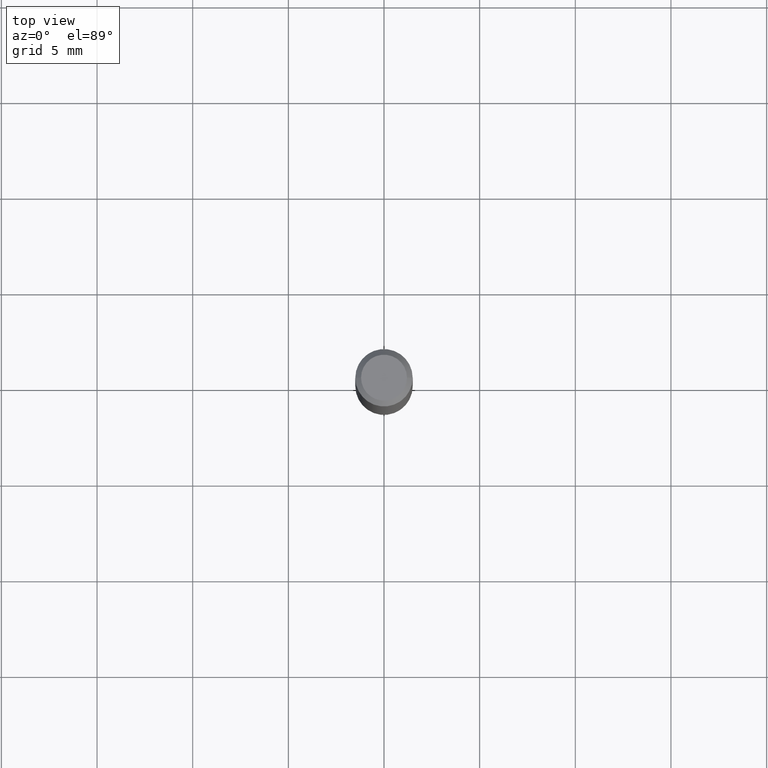
[diagram: clean part render]
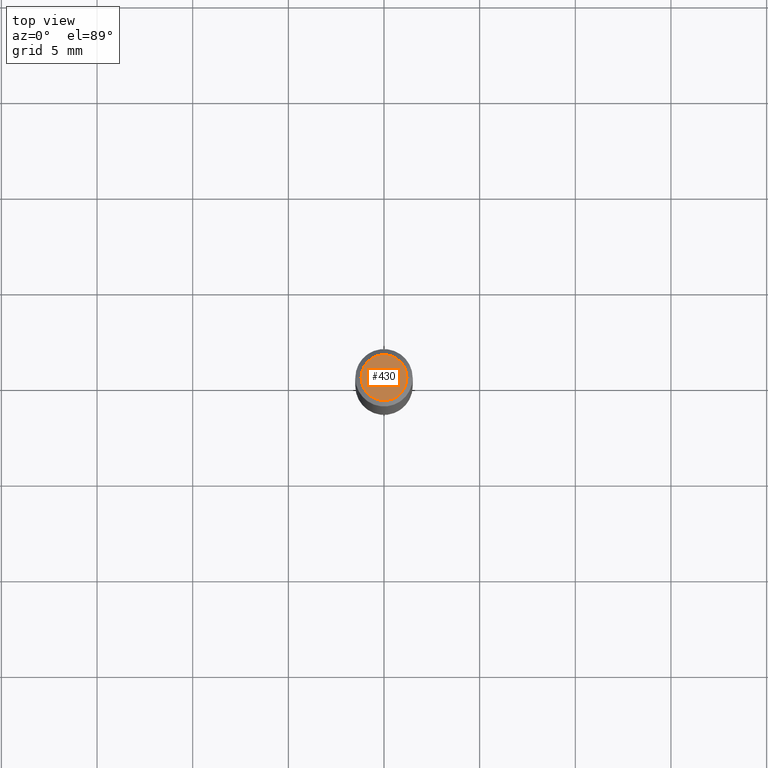
[diagram: same view with one face highlighted and labeled with its STEP entity id]
A machine part, top view. The second image highlights one B-rep face of the part: STEP entity #430.
In plain terms, the highlighted planar face has unit normal (0, -0, -1).
Its self-contained STEP definition (entity closure, byte-faithful):
#19 = VERTEX_POINT ( 'NONE', #289 ) ;
#20 = DIRECTION ( 'NONE',  ( 1.000000000000000000, -6.982962677686266711E-15, 4.876185090822587894E-29 ) ) ;
#85 = CARTESIAN_POINT ( 'NONE',  ( 8.265746106709734507E-48, -1.180129479067563789E-33, -3.380025165646692144E-19 ) ) ;
#89 = ORIENTED_EDGE ( 'NONE', *, *, #349, .T. ) ;
#101 = DIRECTION ( 'NONE',  ( -1.000000000000000000, 6.982962677686265922E-15, -4.876176775795935793E-29 ) ) ;
#131 = CARTESIAN_POINT ( 'NONE',  ( 8.265746106709734507E-48, -1.180129479067563789E-33, -3.380025165646692144E-19 ) ) ;
#137 = DIRECTION ( 'NONE',  ( 2.438088387897960049E-29, -3.491481338843145188E-15, -1.000000000000000000 ) ) ;
#157 = DIRECTION ( 'NONE',  ( 1.000000000000000000, -6.982962677686266711E-15, 4.876185090822587894E-29 ) ) ;
#186 = CARTESIAN_POINT ( 'NONE',  ( -0.04724000000000000421, 3.504923541997677355E-16, -3.380025165670481712E-19 ) ) ;
#196 = AXIS2_PLACEMENT_3D ( 'NONE', #479, #137, #101 ) ;
#221 = AXIS2_PLACEMENT_3D ( 'NONE', #85, #303, #157 ) ;
#242 = DIRECTION ( 'NONE',  ( -2.445468806185136597E-29, 3.491481338843145583E-15, 1.000000000000000000 ) ) ;
#276 = VERTEX_POINT ( 'NONE', #186 ) ;
#289 = CARTESIAN_POINT ( 'NONE',  ( 0.04724000000000000421, -3.852183633974369838E-16, -3.380025165621689721E-19 ) ) ;
#303 = DIRECTION ( 'NONE',  ( -2.445468806185136597E-29, 3.491481338843145583E-15, 1.000000000000000000 ) ) ;
#311 = AXIS2_PLACEMENT_3D ( 'NONE', #131, #242, #20 ) ;
#319 = EDGE_LOOP ( 'NONE', ( #477, #89 ) ) ;
#346 = CIRCLE ( 'NONE', #311, 0.04724000000000000421 ) ;
#349 = EDGE_CURVE ( 'NONE', #19, #276, #447, .T. ) ;
#363 = FACE_OUTER_BOUND ( 'NONE', #319, .T. ) ;
#378 = EDGE_CURVE ( 'NONE', #276, #19, #346, .T. ) ;
#430 = ADVANCED_FACE ( 'NONE', ( #363 ), #475, .F. ) ;
#447 = CIRCLE ( 'NONE', #221, 0.04724000000000000421 ) ;
#475 = PLANE ( 'NONE',  #196 ) ;
#477 = ORIENTED_EDGE ( 'NONE', *, *, #378, .T. ) ;
#479 = CARTESIAN_POINT ( 'NONE',  ( 4.132873053354867254E-48, -5.900647395337818946E-34, -1.690012582823346072E-19 ) ) ;